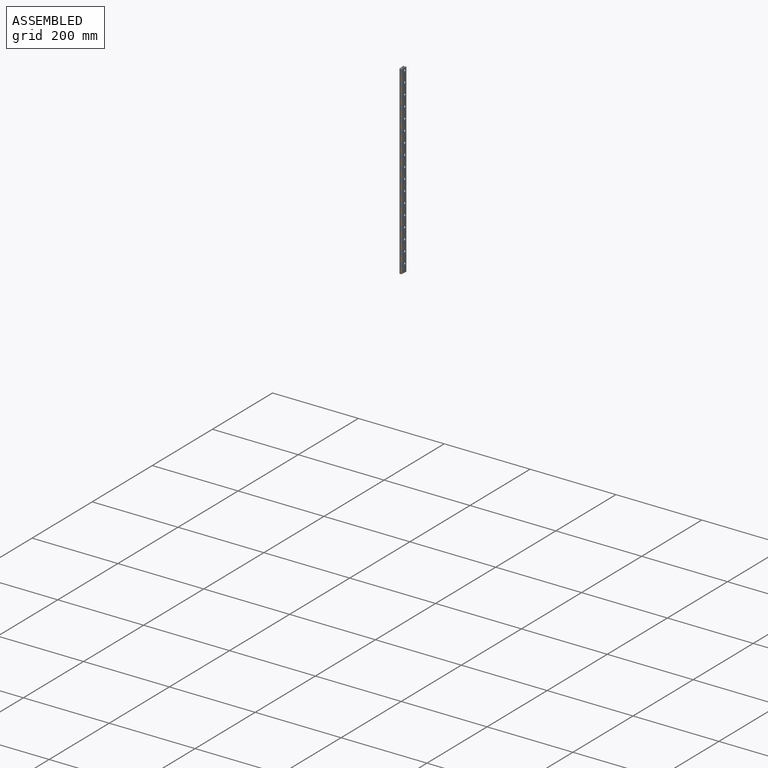
[diagram: assembled view]
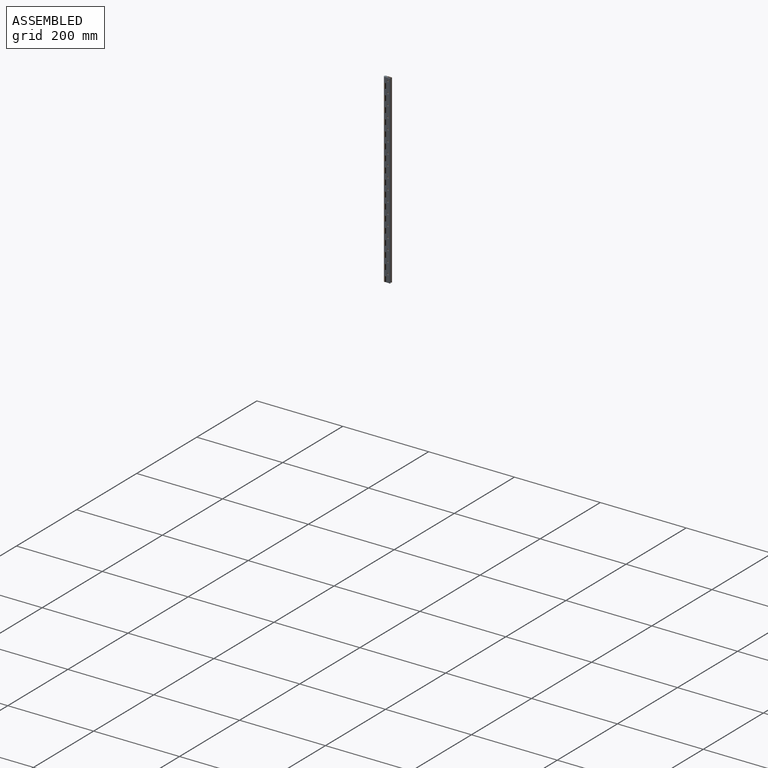
[diagram: assembled view, second angle]
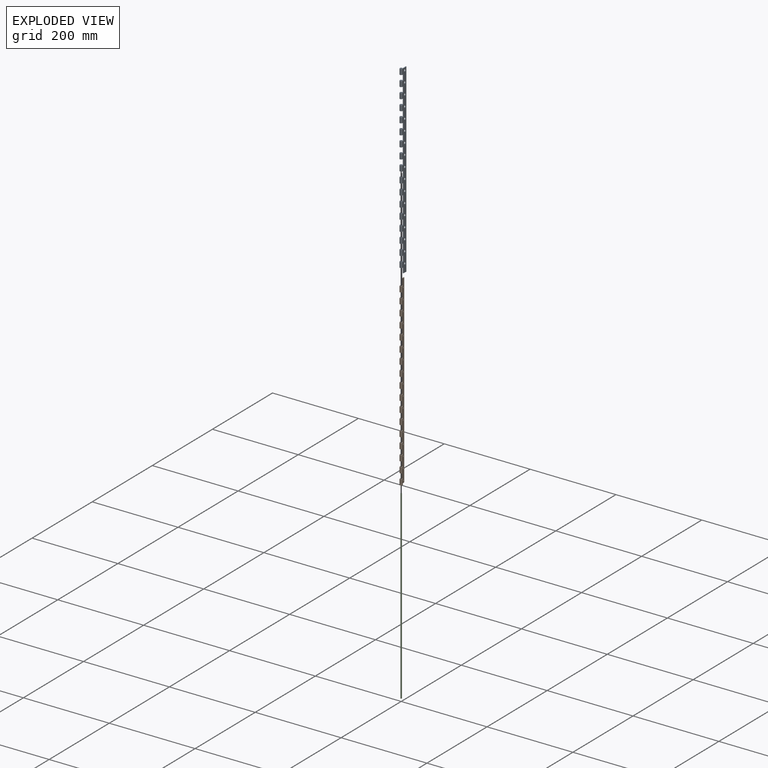
[diagram: exploded view]
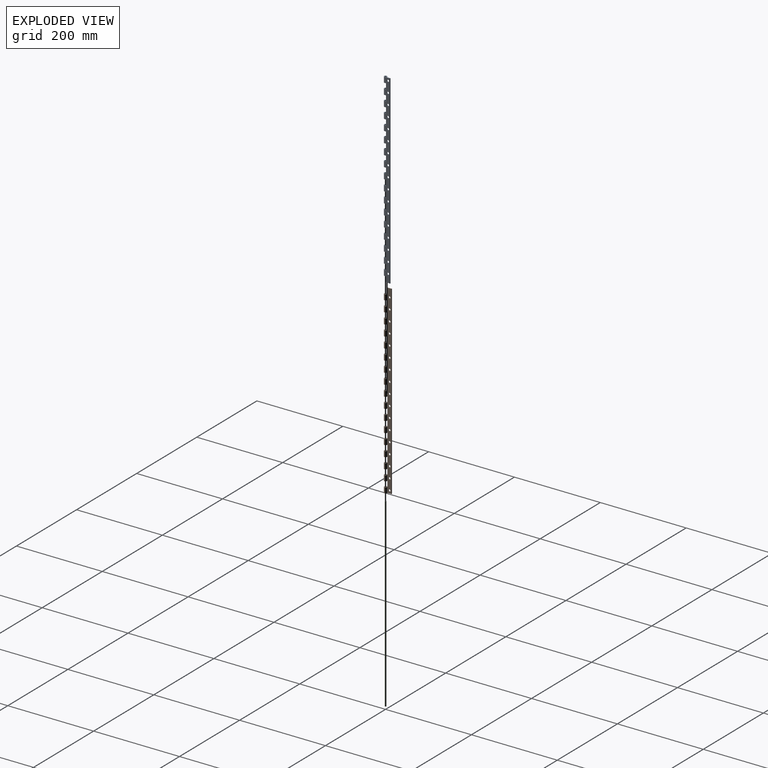
[diagram: exploded view, second angle]
ASSEMBLY  parts=3 mates=2
PART A: 157 faces, bbox 6.4x15.9x431.8 mm
  f0: plane 12.7x1.08mm, normal (0,1,0), area 13.7mm2, adj f49,f65,f127,f144
  f1: plane 12.7x1.08mm, normal (0,1,0), area 13.7mm2, adj f50,f66,f141,f145
  f2: plane 12.7x1.08mm, normal (0,1,0), area 13.7mm2, adj f51,f67,f130,f142
  f3: plane 12.7x1.08mm, normal (0,1,0), area 13.7mm2, adj f52,f68,f124,f126
  f4: plane 12.7x1.08mm, normal (0,1,0), area 13.7mm2, adj f53,f70,f121,f123
  f5: plane 12.7x1.08mm, normal (0,1,0), area 13.7mm2, adj f54,f71,f118,f120
  f6: plane 12.7x1.08mm, normal (0,1,0), area 13.7mm2, adj f55,f72,f115,f117
  f7: plane 12.7x1.08mm, normal (0,1,0), area 13.7mm2, adj f56,f73,f112,f114
  f8: plane 12.7x1.08mm, normal (0,1,0), area 13.7mm2, adj f57,f74,f109,f111
  f9: plane 12.7x1.08mm, normal (0,1,0), area 13.7mm2, adj f58,f75,f106,f108
  f10: plane 12.7x1.08mm, normal (0,1,0), area 13.7mm2, adj f59,f76,f103,f105
  f11: plane 12.7x1.08mm, normal (0,1,0), area 13.7mm2, adj f60,f77,f100,f102
  f12: plane 12.7x1.08mm, normal (0,1,0), area 13.7mm2, adj f61,f78,f97,f99
  f13: plane 12.7x1.08mm, normal (0,1,0), area 13.7mm2, adj f62,f79,f94,f96
  f14: plane 12.7x1.08mm, normal (0,1,0), area 13.7mm2, adj f63,f80,f91,f93
  f15: plane 12.7x1.08mm, normal (0,1,0), area 13.7mm2, adj f64,f81,f90,f155
  f16: plane 431.8x12.7mm, normal (-1,0,0), area 4495.5mm2, adj f17,f18,f19,f20,f21,f22,f23,f24
  f17: cylinder r=1.59mm len=12.7mm, axis (0,0,-1), area 95mm2, adj f16,f33,f127,f144
  f18: cylinder r=1.59mm len=12.7mm, axis (0,0,-1), area 95mm2, adj f16,f34,f141,f145
  f19: cylinder r=1.59mm len=12.7mm, axis (0,0,-1), area 95mm2, adj f16,f35,f130,f142
  f20: cylinder r=1.59mm len=12.7mm, axis (0,0,-1), area 95mm2, adj f16,f36,f124,f126
  f21: cylinder r=1.59mm len=12.7mm, axis (0,0,-1), area 95mm2, adj f16,f37,f121,f123
  f22: cylinder r=1.59mm len=12.7mm, axis (0,0,-1), area 95mm2, adj f16,f38,f118,f120
  f23: cylinder r=1.59mm len=12.7mm, axis (0,0,-1), area 95mm2, adj f16,f39,f115,f117
  f24: cylinder r=1.59mm len=12.7mm, axis (0,0,-1), area 95mm2, adj f16,f40,f112,f114
  f25: cylinder r=1.59mm len=12.7mm, axis (0,0,-1), area 95mm2, adj f16,f41,f109,f111
  f26: cylinder r=1.59mm len=12.7mm, axis (0,0,-1), area 95mm2, adj f16,f42,f106,f108
  f27: cylinder r=1.59mm len=12.7mm, axis (0,0,-1), area 95mm2, adj f16,f43,f103,f105
  f28: cylinder r=1.59mm len=12.7mm, axis (0,0,-1), area 95mm2, adj f16,f44,f100,f102
  f29: cylinder r=1.59mm len=12.7mm, axis (0,0,-1), area 95mm2, adj f16,f45,f97,f99
  f30: cylinder r=1.59mm len=12.7mm, axis (0,0,-1), area 95mm2, adj f16,f46,f94,f96
  f31: cylinder r=1.59mm len=12.7mm, axis (0,0,-1), area 95mm2, adj f16,f47,f91,f93
  f32: cylinder r=1.59mm len=12.7mm, axis (0,0,-1), area 95mm2, adj f16,f48,f90,f155
  f33: plane 12.7x1.08mm, normal (0,-1,0), area 13.7mm2, adj f17,f49,f127,f144
  f34: plane 12.7x1.08mm, normal (0,-1,0), area 13.7mm2, adj f18,f50,f141,f145
  f35: plane 12.7x1.08mm, normal (0,-1,0), area 13.7mm2, adj f19,f51,f130,f142
  f36: plane 12.7x1.08mm, normal (0,-1,0), area 13.7mm2, adj f20,f52,f124,f126
  f37: plane 12.7x1.08mm, normal (0,-1,0), area 13.7mm2, adj f21,f53,f121,f123
  f38: plane 12.7x1.08mm, normal (0,-1,0), area 13.7mm2, adj f22,f54,f118,f120
  f39: plane 12.7x1.08mm, normal (0,-1,0), area 13.7mm2, adj f23,f55,f115,f117
  f40: plane 12.7x1.08mm, normal (0,-1,0), area 13.7mm2, adj f24,f56,f112,f114
  f41: plane 12.7x1.08mm, normal (0,-1,0), area 13.7mm2, adj f25,f57,f109,f111
  f42: plane 12.7x1.08mm, normal (0,-1,0), area 13.7mm2, adj f26,f58,f106,f108
  f43: plane 12.7x1.08mm, normal (0,-1,0), area 13.7mm2, adj f27,f59,f103,f105
  f44: plane 12.7x1.08mm, normal (0,-1,0), area 13.7mm2, adj f28,f60,f100,f102
  f45: plane 12.7x1.08mm, normal (0,-1,0), area 13.7mm2, adj f29,f61,f97,f99
  f46: plane 12.7x1.08mm, normal (0,-1,0), area 13.7mm2, adj f30,f62,f94,f96
  f47: plane 12.7x1.08mm, normal (0,-1,0), area 13.7mm2, adj f31,f63,f91,f93
  f48: plane 12.7x1.08mm, normal (0,-1,0), area 13.7mm2, adj f32,f64,f90,f155
  f49: plane 12.7x1.59mm, normal (1,0,0), area 20.2mm2, adj f0,f33,f127,f144
  f50: plane 12.7x1.59mm, normal (1,0,0), area 20.2mm2, adj f1,f34,f141,f145
  f51: plane 12.7x1.59mm, normal (1,0,0), area 20.2mm2, adj f2,f35,f130,f142
  f52: plane 12.7x1.59mm, normal (1,0,0), area 20.2mm2, adj f3,f36,f124,f126
  f53: plane 12.7x1.59mm, normal (1,0,0), area 20.2mm2, adj f4,f37,f121,f123
  f54: plane 12.7x1.59mm, normal (1,0,0), area 20.2mm2, adj f5,f38,f118,f120
  f55: plane 12.7x1.59mm, normal (1,0,0), area 20.2mm2, adj f6,f39,f115,f117
  f56: plane 12.7x1.59mm, normal (1,0,0), area 20.2mm2, adj f7,f40,f112,f114
  f57: plane 12.7x1.59mm, normal (1,0,0), area 20.2mm2, adj f8,f41,f109,f111
  f58: plane 12.7x1.59mm, normal (1,0,0), area 20.2mm2, adj f9,f42,f106,f108
  f59: plane 12.7x1.59mm, normal (1,0,0), area 20.2mm2, adj f10,f43,f103,f105
  f60: plane 12.7x1.59mm, normal (1,0,0), area 20.2mm2, adj f11,f44,f100,f102
  f61: plane 12.7x1.59mm, normal (1,0,0), area 20.2mm2, adj f12,f45,f97,f99
  f62: plane 12.7x1.59mm, normal (1,0,0), area 20.2mm2, adj f13,f46,f94,f96
  f63: plane 12.7x1.59mm, normal (1,0,0), area 20.2mm2, adj f14,f47,f91,f93
  f64: plane 12.7x1.59mm, normal (1,0,0), area 20.2mm2, adj f15,f48,f90,f155
  f65: cylinder r=3.17mm len=12.7mm, axis (0,0,-1), area 190mm2, adj f0,f82,f127,f144
  f66: cylinder r=3.17mm len=12.7mm, axis (0,0,-1), area 190mm2, adj f1,f82,f141,f145
  f67: cylinder r=3.17mm len=12.7mm, axis (0,0,-1), area 190mm2, adj f2,f82,f130,f142
  f68: cylinder r=3.17mm len=12.7mm, axis (0,0,-1), area 190mm2, adj f3,f82,f124,f126
  f69: cylinder r=3.17mm len=12.7mm, axis (0,0,-1), area 190mm2, adj f82,f88,f89,f129
  f70: cylinder r=3.17mm len=12.7mm, axis (0,0,-1), area 190mm2, adj f4,f82,f121,f123
  f71: cylinder r=3.17mm len=12.7mm, axis (0,0,-1), area 190mm2, adj f5,f82,f118,f120
  f72: cylinder r=3.17mm len=12.7mm, axis (0,0,-1), area 190mm2, adj f6,f82,f115,f117
  f73: cylinder r=3.17mm len=12.7mm, axis (0,0,-1), area 190mm2, adj f7,f82,f112,f114
  f74: cylinder r=3.17mm len=12.7mm, axis (0,0,-1), area 190mm2, adj f8,f82,f109,f111
  f75: cylinder r=3.17mm len=12.7mm, axis (0,0,-1), area 190mm2, adj f9,f82,f106,f108
  f76: cylinder r=3.17mm len=12.7mm, axis (0,0,-1), area 190mm2, adj f10,f82,f103,f105
  f77: cylinder r=3.17mm len=12.7mm, axis (0,0,-1), area 190mm2, adj f11,f82,f100,f102
  f78: cylinder r=3.17mm len=12.7mm, axis (0,0,-1), area 190mm2, adj f12,f82,f97,f99
  f79: cylinder r=3.17mm len=12.7mm, axis (0,0,-1), area 190mm2, adj f13,f82,f94,f96
  f80: cylinder r=3.17mm len=12.7mm, axis (0,0,-1), area 190mm2, adj f14,f82,f91,f93
  f81: cylinder r=3.17mm len=12.7mm, axis (0,0,-1), area 190mm2, adj f15,f82,f90,f155
  f82: plane 431.8x12.7mm, normal (1,0,0), area 4495.5mm2, adj f65,f66,f67,f68,f69,f70,f71,f72
  f83: plane 9.53x1.59mm, normal (0,0,-1), area 15.1mm2, adj f16,f82,f84,f156
  f84: plane 431.8x1.59mm, normal (0,1,0), area 685.5mm2, adj f16,f82,f83,f89
  f85: cylinder r=1.59mm len=12.7mm, axis (0,0,-1), area 95mm2, adj f16,f86,f89,f129
  f86: plane 12.7x1.08mm, normal (0,-1,0), area 13.7mm2, adj f85,f87,f89,f129
  f87: plane 12.7x1.59mm, normal (1,0,0), area 20.2mm2, adj f86,f88,f89,f129
  f88: plane 12.7x1.08mm, normal (0,1,0), area 13.7mm2, adj f69,f87,f89,f129
  f89: plane 15.88x6.35mm, normal (0,0,1), area 39.7mm2, adj f16,f69,f82,f84,f85,f86,f87,f88
  f90: plane 6.35x6.35mm, normal (0,0,1), area 24.6mm2, adj f15,f16,f32,f48,f64,f81,f82,f92
  f91: plane 6.35x6.35mm, normal (0,0,-1), area 24.6mm2, adj f14,f16,f31,f47,f63,f80,f82,f92
  f92: plane 12.7x1.59mm, normal (0,-1,0), area 20.2mm2, adj f16,f82,f90,f91
  f93: plane 6.35x6.35mm, normal (0,0,1), area 24.6mm2, adj f14,f16,f31,f47,f63,f80,f82,f95
  f94: plane 6.35x6.35mm, normal (0,0,-1), area 24.6mm2, adj f13,f16,f30,f46,f62,f79,f82,f95
  f95: plane 12.7x1.59mm, normal (0,-1,0), area 20.2mm2, adj f16,f82,f93,f94
  f96: plane 6.35x6.35mm, normal (0,0,1), area 24.6mm2, adj f13,f16,f30,f46,f62,f79,f82,f98
  f97: plane 6.35x6.35mm, normal (0,0,-1), area 24.6mm2, adj f12,f16,f29,f45,f61,f78,f82,f98
  f98: plane 12.7x1.59mm, normal (0,-1,0), area 20.2mm2, adj f16,f82,f96,f97
  f99: plane 6.35x6.35mm, normal (0,0,1), area 24.6mm2, adj f12,f16,f29,f45,f61,f78,f82,f101
  f100: plane 6.35x6.35mm, normal (0,0,-1), area 24.6mm2, adj f11,f16,f28,f44,f60,f77,f82,f101
  f101: plane 12.7x1.59mm, normal (0,-1,0), area 20.2mm2, adj f16,f82,f99,f100
  f102: plane 6.35x6.35mm, normal (0,0,1), area 24.6mm2, adj f11,f16,f28,f44,f60,f77,f82,f104
  f103: plane 6.35x6.35mm, normal (0,0,-1), area 24.6mm2, adj f10,f16,f27,f43,f59,f76,f82,f104
  f104: plane 12.7x1.59mm, normal (0,-1,0), area 20.2mm2, adj f16,f82,f102,f103
  f105: plane 6.35x6.35mm, normal (0,0,1), area 24.6mm2, adj f10,f16,f27,f43,f59,f76,f82,f107
  f106: plane 6.35x6.35mm, normal (0,0,-1), area 24.6mm2, adj f9,f16,f26,f42,f58,f75,f82,f107
  f107: plane 12.7x1.59mm, normal (0,-1,0), area 20.2mm2, adj f16,f82,f105,f106
  f108: plane 6.35x6.35mm, normal (0,0,1), area 24.6mm2, adj f9,f16,f26,f42,f58,f75,f82,f110
  f109: plane 6.35x6.35mm, normal (0,0,-1), area 24.6mm2, adj f8,f16,f25,f41,f57,f74,f82,f110
  f110: plane 12.7x1.59mm, normal (0,-1,0), area 20.2mm2, adj f16,f82,f108,f109
  f111: plane 6.35x6.35mm, normal (0,0,1), area 24.6mm2, adj f8,f16,f25,f41,f57,f74,f82,f113
  f112: plane 6.35x6.35mm, normal (0,0,-1), area 24.6mm2, adj f7,f16,f24,f40,f56,f73,f82,f113
  f113: plane 12.7x1.59mm, normal (0,-1,0), area 20.2mm2, adj f16,f82,f111,f112
  f114: plane 6.35x6.35mm, normal (0,0,1), area 24.6mm2, adj f7,f16,f24,f40,f56,f73,f82,f116
  f115: plane 6.35x6.35mm, normal (0,0,-1), area 24.6mm2, adj f6,f16,f23,f39,f55,f72,f82,f116
  f116: plane 12.7x1.59mm, normal (0,-1,0), area 20.2mm2, adj f16,f82,f114,f115
  f117: plane 6.35x6.35mm, normal (0,0,1), area 24.6mm2, adj f6,f16,f23,f39,f55,f72,f82,f119
  f118: plane 6.35x6.35mm, normal (0,0,-1), area 24.6mm2, adj f5,f16,f22,f38,f54,f71,f82,f119
  f119: plane 12.7x1.59mm, normal (0,-1,0), area 20.2mm2, adj f16,f82,f117,f118
  f120: plane 6.35x6.35mm, normal (0,0,1), area 24.6mm2, adj f5,f16,f22,f38,f54,f71,f82,f122
  f121: plane 6.35x6.35mm, normal (0,0,-1), area 24.6mm2, adj f4,f16,f21,f37,f53,f70,f82,f122
  f122: plane 12.7x1.59mm, normal (0,-1,0), area 20.2mm2, adj f16,f82,f120,f121
  f123: plane 6.35x6.35mm, normal (0,0,1), area 24.6mm2, adj f4,f16,f21,f37,f53,f70,f82,f125
  f124: plane 6.35x6.35mm, normal (0,0,-1), area 24.6mm2, adj f3,f16,f20,f36,f52,f68,f82,f125
  f125: plane 12.7x1.59mm, normal (0,-1,0), area 20.2mm2, adj f16,f82,f123,f124
  f126: plane 6.35x6.35mm, normal (0,0,1), area 24.6mm2, adj f3,f16,f20,f36,f52,f68,f82,f128
  f127: plane 6.35x6.35mm, normal (0,0,-1), area 24.6mm2, adj f0,f16,f17,f33,f49,f65,f82,f128
  f128: plane 12.7x1.59mm, normal (0,-1,0), area 20.2mm2, adj f16,f82,f126,f127
  f129: plane 6.35x6.35mm, normal (0,0,-1), area 24.6mm2, adj f16,f69,f82,f85,f86,f87,f88,f131
  f130: plane 6.35x6.35mm, normal (0,0,1), area 24.6mm2, adj f2,f16,f19,f35,f51,f67,f82,f131
  f131: plane 12.7x1.59mm, normal (0,-1,0), area 20.2mm2, adj f16,f82,f129,f130
  f132: cylinder r=2.38mm len=4.76mm, axis (1,0,0), area 23.8mm2, adj f16,f82
  f133: cylinder r=2.38mm len=4.76mm, axis (1,0,0), area 23.8mm2, adj f16,f82
  f134: cylinder r=2.38mm len=4.76mm, axis (1,0,0), area 23.8mm2, adj f16,f82
  f135: cylinder r=2.38mm len=4.76mm, axis (1,0,0), area 23.8mm2, adj f16,f82
  f136: cylinder r=2.38mm len=4.76mm, axis (1,0,0), area 23.8mm2, adj f16,f82
  f137: cylinder r=2.38mm len=4.76mm, axis (1,0,0), area 23.8mm2, adj f16,f82
  f138: cylinder r=2.38mm len=4.76mm, axis (1,0,0), area 23.8mm2, adj f16,f82
  f139: cylinder r=2.38mm len=4.76mm, axis (1,0,0), area 23.8mm2, adj f16,f82
  f140: cylinder r=2.38mm len=4.76mm, axis (1,0,0), area 23.8mm2, adj f16,f82
  f141: plane 6.35x6.35mm, normal (0,0,1), area 24.6mm2, adj f1,f16,f18,f34,f50,f66,f82,f143
  f142: plane 6.35x6.35mm, normal (0,0,-1), area 24.6mm2, adj f2,f16,f19,f35,f51,f67,f82,f143
  f143: plane 12.7x1.59mm, normal (0,-1,0), area 20.2mm2, adj f16,f82,f141,f142
  f144: plane 6.35x6.35mm, normal (0,0,1), area 24.6mm2, adj f0,f16,f17,f33,f49,f65,f82,f146
  f145: plane 6.35x6.35mm, normal (0,0,-1), area 24.6mm2, adj f1,f16,f18,f34,f50,f66,f82,f146
  f146: plane 12.7x1.59mm, normal (0,-1,0), area 20.2mm2, adj f16,f82,f144,f145
  f147: cylinder r=2.38mm len=4.76mm, axis (1,0,0), area 23.8mm2, adj f16,f82
  f148: cylinder r=2.38mm len=4.76mm, axis (1,0,0), area 23.8mm2, adj f16,f82
  f149: cylinder r=2.38mm len=4.76mm, axis (1,0,0), area 23.8mm2, adj f16,f82
  f150: cylinder r=2.38mm len=4.76mm, axis (1,0,0), area 23.8mm2, adj f16,f82
  f151: cylinder r=2.38mm len=4.76mm, axis (1,0,0), area 23.8mm2, adj f16,f82
  f152: cylinder r=2.38mm len=4.76mm, axis (1,0,0), area 23.8mm2, adj f16,f82
  f153: cylinder r=2.38mm len=4.76mm, axis (1,0,0), area 23.8mm2, adj f16,f82
  f154: cylinder r=2.38mm len=4.76mm, axis (1,0,0), area 23.8mm2, adj f16,f82
  f155: plane 6.35x6.35mm, normal (0,0,-1), area 24.6mm2, adj f15,f16,f32,f48,f64,f81,f82,f156
  f156: plane 12.7x1.59mm, normal (0,-1,0), area 20.2mm2, adj f16,f82,f83,f155
PART B: same geometry as A
PART C: 3 faces, bbox 3.2x3.2x431.8 mm
  f0: cylinder r=1.59mm len=431.8mm, axis (0,0,-1), area 4307mm2, adj f1,f2
  f1: plane 3.18x3.18mm, normal (0,0,1), area 7.9mm2, adj f0
  f2: plane 3.18x3.18mm, normal (0,0,-1), area 7.9mm2, adj f0
PLACE A at identity fixed
PLACE B rot(axis=(0,1,0),180deg) t=(0,0,0)mm
PLACE C at identity
MATE revolute B.f65 <-> A.f65  axis (0,0,1) through (0,0,203.2)mm
MATE fastened C.f0 <-> A.f65  axis (0,0,1) through (0,0,215.9)mm
